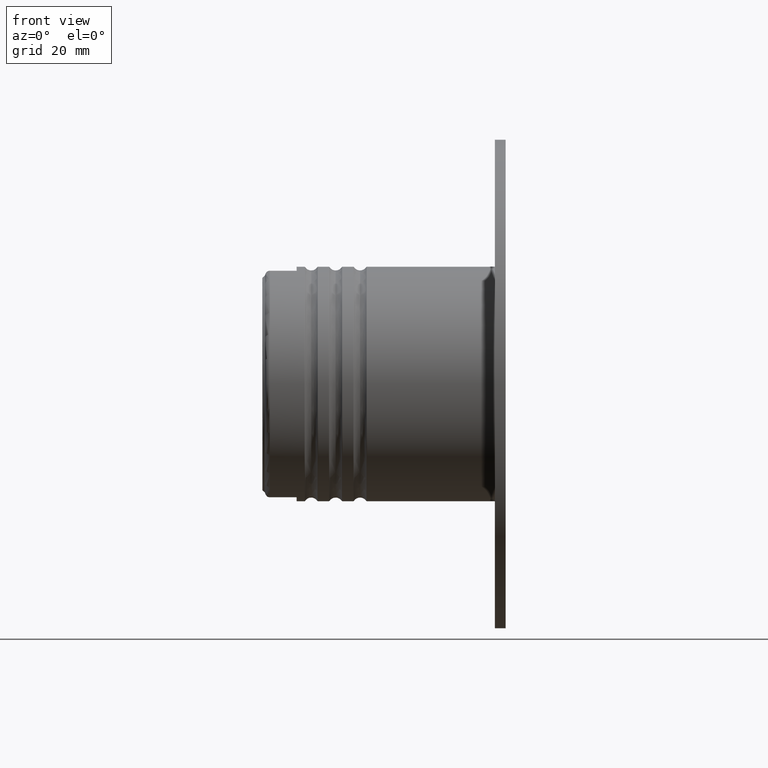
[diagram: clean part render]
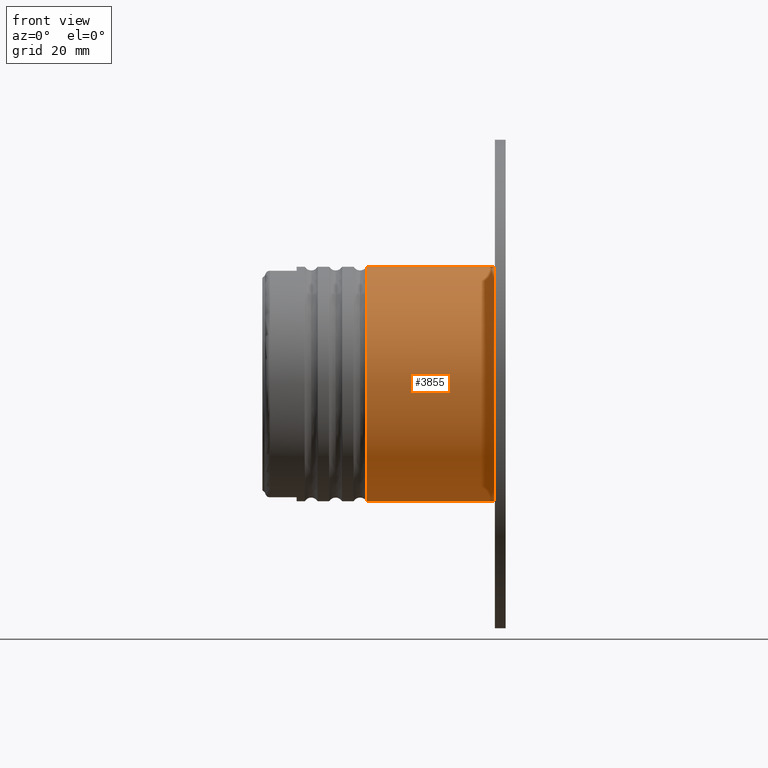
[diagram: same view with one face highlighted and labeled with its STEP entity id]
A machine part, front view. The second image highlights one B-rep face of the part: STEP entity #3855.
In plain terms, the highlighted cylindrical surface (partial cylindrical patch) has radius 24 mm, axis along (1, 0, 0).
Its self-contained STEP definition (entity closure, byte-faithful):
#227 = CARTESIAN_POINT ( 'NONE',  ( 0.0000000000000000000, 2.939152317953647106E-15, 23.99999999999999289 ) ) ;
#382 = VERTEX_POINT ( 'NONE', #3511 ) ;
#406 = DIRECTION ( 'NONE',  ( 0.0000000000000000000, 0.0000000000000000000, -1.000000000000000000 ) ) ;
#609 = DIRECTION ( 'NONE',  ( 1.000000000000000000, -0.0000000000000000000, -0.0000000000000000000 ) ) ;
#676 = CARTESIAN_POINT ( 'NONE',  ( 0.0000000000000000000, 0.0000000000000000000, -23.99999999999999289 ) ) ;
#948 = CARTESIAN_POINT ( 'NONE',  ( 0.0000000000000000000, 0.0000000000000000000, 0.0000000000000000000 ) ) ;
#983 = LINE ( 'NONE', #676, #5117 ) ;
#1057 = CARTESIAN_POINT ( 'NONE',  ( -28.33993941201282851, 0.0000000000000000000, -24.00000000000000000 ) ) ;
#1136 = EDGE_LOOP ( 'NONE', ( #1237, #1678, #5692, #3502 ) ) ;
#1237 = ORIENTED_EDGE ( 'NONE', *, *, #5552, .F. ) ;
#1324 = AXIS2_PLACEMENT_3D ( 'NONE', #1849, #4423, #4440 ) ;
#1447 = CIRCLE ( 'NONE', #1324, 24.00000000000000000 ) ;
#1462 = EDGE_CURVE ( 'NONE', #3513, #382, #1447, .T. ) ;
#1678 = ORIENTED_EDGE ( 'NONE', *, *, #4622, .F. ) ;
#1774 = DIRECTION ( 'NONE',  ( 1.000000000000000000, -0.0000000000000000000, -0.0000000000000000000 ) ) ;
#1835 = DIRECTION ( 'NONE',  ( -1.000000000000000000, -0.0000000000000000000, -0.0000000000000000000 ) ) ;
#1849 = CARTESIAN_POINT ( 'NONE',  ( -1.899999999999999023, 0.0000000000000000000, 0.0000000000000000000 ) ) ;
#2594 = AXIS2_PLACEMENT_3D ( 'NONE', #948, #1774, #406 ) ;
#2677 = CARTESIAN_POINT ( 'NONE',  ( -28.33993941201282851, 0.0000000000000000000, 0.0000000000000000000 ) ) ;
#2930 = VECTOR ( 'NONE', #3861, 1000.000000000000000 ) ;
#3447 = FACE_OUTER_BOUND ( 'NONE', #1136, .T. ) ;
#3449 = CARTESIAN_POINT ( 'NONE',  ( -1.899999999999999023, 2.939152317953647894E-15, 24.00000000000000000 ) ) ;
#3502 = ORIENTED_EDGE ( 'NONE', *, *, #1462, .F. ) ;
#3511 = CARTESIAN_POINT ( 'NONE',  ( -1.899999999999999023, 0.0000000000000000000, -24.00000000000000000 ) ) ;
#3513 = VERTEX_POINT ( 'NONE', #3449 ) ;
#3671 = CYLINDRICAL_SURFACE ( 'NONE', #2594, 23.99999999999999289 ) ;
#3855 = ADVANCED_FACE ( 'NONE', ( #3447 ), #3671, .T. ) ;
#3861 = DIRECTION ( 'NONE',  ( 1.000000000000000000, -0.0000000000000000000, -0.0000000000000000000 ) ) ;
#4035 = EDGE_CURVE ( 'NONE', #5057, #382, #983, .T. ) ;
#4056 = DIRECTION ( 'NONE',  ( 0.0000000000000000000, 0.0000000000000000000, 1.000000000000000000 ) ) ;
#4423 = DIRECTION ( 'NONE',  ( 1.000000000000000000, -0.0000000000000000000, -0.0000000000000000000 ) ) ;
#4440 = DIRECTION ( 'NONE',  ( 0.0000000000000000000, 0.0000000000000000000, -1.000000000000000000 ) ) ;
#4545 = VERTEX_POINT ( 'NONE', #4810 ) ;
#4622 = EDGE_CURVE ( 'NONE', #5057, #4545, #4982, .T. ) ;
#4810 = CARTESIAN_POINT ( 'NONE',  ( -28.33993941201282851, 2.939152317953647894E-15, 24.00000000000000000 ) ) ;
#4982 = CIRCLE ( 'NONE', #5606, 23.99999999999999645 ) ;
#5057 = VERTEX_POINT ( 'NONE', #1057 ) ;
#5117 = VECTOR ( 'NONE', #609, 1000.000000000000000 ) ;
#5356 = LINE ( 'NONE', #227, #2930 ) ;
#5552 = EDGE_CURVE ( 'NONE', #4545, #3513, #5356, .T. ) ;
#5606 = AXIS2_PLACEMENT_3D ( 'NONE', #2677, #1835, #4056 ) ;
#5692 = ORIENTED_EDGE ( 'NONE', *, *, #4035, .T. ) ;